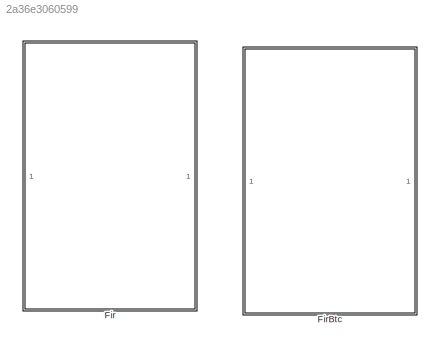
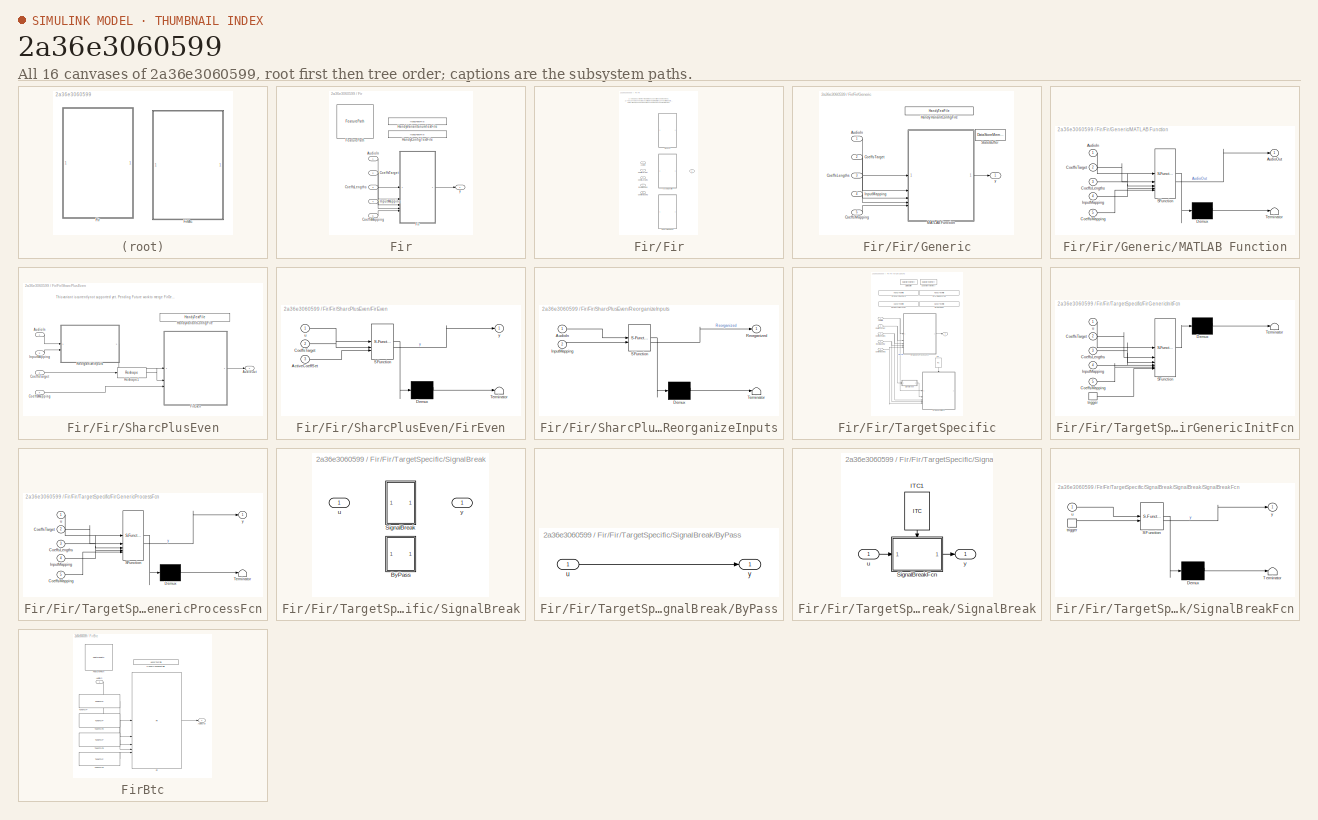
[diagram: thumbnail index - all 16 canvases of the model, root first then tree order]
MODEL slx_2a36e3060599
KIND library
CONFIG AbsTol = auto
CONFIG EnableMultiTasking = off
CONFIG FixedStep = auto
CONFIG MaxStep = auto
CONFIG MinStep = auto
CONFIG RelTol = 1e-3
CONFIG SampleTimeConstraint = Unconstrained
CONFIG SolverName = VariableStepAuto
CONFIG StartTime = 0.0
CONFIG StopTime = 10.0
BLOCK [SubSystem] Fir
BLOCK [Inport] Fir/AudioIn
BLOCK [Inport] Fir/CoeffsLengths
  Port = 3
BLOCK [Inport] Fir/CoeffsMapping
  Port = 5
BLOCK [Inport] Fir/CoeffsTarget
  Port = 2
BLOCK [Reference] Fir/FeaturePath  REF=FeaturePath/FeaturePath
  SourceBlock = FeaturePath/FeaturePath
  SourceProductName = Bose Talaria
  SourceType = Talaria Feature Path
BLOCK [SubSystem] Fir/Fir
  Variant = on
BLOCK [Inport] Fir/Fir/AudioIn
BLOCK [Inport] Fir/Fir/CoeffsLengths
  Port = 3
BLOCK [Inport] Fir/Fir/CoeffsMapping
  Port = 5
BLOCK [Inport] Fir/Fir/CoeffsTarget
  Port = 2
BLOCK [SubSystem] Fir/Fir/Generic
  VariantControl = (default)
BLOCK [Inport] Fir/Fir/Generic/AudioIn
BLOCK [Inport] Fir/Fir/Generic/CoeffsLengths
  Port = 3
BLOCK [Inport] Fir/Fir/Generic/CoeffsMapping
  Port = 5
BLOCK [Inport] Fir/Fir/Generic/CoeffsTarget
  Port = 2
BLOCK [Reference] Fir/Fir/Generic/HandyVariantConfigFile  REF=HandyTextFile/HandyTextFile
  SourceBlock = HandyTextFile/HandyTextFile
  SourceProductName = Bose Talaria
  SourceType = Talaria Handy Text File
BLOCK [Inport] Fir/Fir/Generic/InputMapping
  Port = 4
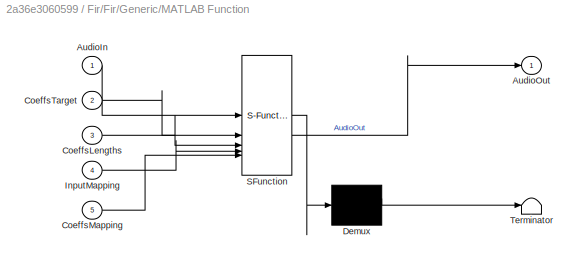
BLOCK [SubSystem] Fir/Fir/Generic/MATLAB Function
  ErrorFcn = Stateflow.Translate.translate
  LibrarySourceBlock = simulink/User-Defined\nFunctions/MATLAB Function
  PermitHierarchicalResolution = ExplicitOnly
  SFBlockType = MATLAB Function
  TreatAsAtomicUnit = on
BLOCK [Demux] Fir/Fir/Generic/MATLAB Function/ Demux 
  Outputs = 1
BLOCK [S-Function] Fir/Fir/Generic/MATLAB Function/ SFunction 
  EnableBusSupport = off
  FunctionName = sf_sfun
  Parameters = FrameSize,NumOutputs
  PortCounts = [5 2]
  SFcnIsStateOwnerBlock = off
  SFunctionDeploymentMode = off
  Tag = Stateflow S-Function 5
BLOCK [Terminator] Fir/Fir/Generic/MATLAB Function/ Terminator 
BLOCK [Inport] Fir/Fir/Generic/MATLAB Function/AudioIn
BLOCK [Outport] Fir/Fir/Generic/MATLAB Function/AudioOut
BLOCK [Inport] Fir/Fir/Generic/MATLAB Function/CoeffsLengths
  Port = 3
BLOCK [Inport] Fir/Fir/Generic/MATLAB Function/CoeffsMapping
  Port = 5
BLOCK [Inport] Fir/Fir/Generic/MATLAB Function/CoeffsTarget
  Port = 2
BLOCK [Inport] Fir/Fir/Generic/MATLAB Function/InputMapping
  Port = 4
BLOCK [DataStoreMemory] Fir/Fir/Generic/StateBuffer
  DataStoreName = StateBuffer
  InitialValue = single(zeros(Config.VariantObj.StateBufferSize,1))
  OutDataTypeStr = single
  ShowAdditionalParam = off
  SignalType = real
  WriteAfterWriteMsg = warning
BLOCK [Outport] Fir/Fir/Generic/y
BLOCK [Inport] Fir/Fir/InputMapping
  Port = 4
BLOCK [SubSystem] Fir/Fir/SharcPlusEven
  VariantControl = (false)
BLOCK [Inport] Fir/Fir/SharcPlusEven/AudioIn
BLOCK [Outport] Fir/Fir/SharcPlusEven/AudioOut
BLOCK [Inport] Fir/Fir/SharcPlusEven/CoeffsMapping
  Port = 4
BLOCK [Inport] Fir/Fir/SharcPlusEven/CoeffsTarget
  Port = 2
BLOCK [SubSystem] Fir/Fir/SharcPlusEven/FirEven
  ErrorFcn = Stateflow.Translate.translate
  LibrarySourceBlock = simulink/User-Defined\nFunctions/MATLAB Function
  PermitHierarchicalResolution = ExplicitOnly
  SFBlockType = MATLAB Function
  TreatAsAtomicUnit = on
BLOCK [Demux] Fir/Fir/SharcPlusEven/FirEven/ Demux 
  Outputs = 1
BLOCK [S-Function] Fir/Fir/SharcPlusEven/FirEven/ SFunction 
  EnableBusSupport = off
  FunctionName = sf_sfun
  PortCounts = [3 2]
  SFcnIsStateOwnerBlock = off
  SFunctionDeploymentMode = off
  Tag = Stateflow S-Function 6
BLOCK [Terminator] Fir/Fir/SharcPlusEven/FirEven/ Terminator 
BLOCK [Inport] Fir/Fir/SharcPlusEven/FirEven/ActiveCoeffSet
  Port = 3
BLOCK [Inport] Fir/Fir/SharcPlusEven/FirEven/CoeffsTarget
  Port = 2
BLOCK [Inport] Fir/Fir/SharcPlusEven/FirEven/u
BLOCK [Outport] Fir/Fir/SharcPlusEven/FirEven/y
BLOCK [Reference] Fir/Fir/SharcPlusEven/HandyVariantConfigFile  REF=HandyTextFile/HandyTextFile
  SourceBlock = HandyTextFile/HandyTextFile
  SourceProductName = Bose Talaria
  SourceType = Talaria Handy Text File
BLOCK [Inport] Fir/Fir/SharcPlusEven/InputMapping
  Port = 3
BLOCK [SubSystem] Fir/Fir/SharcPlusEven/ReorganizeInputs
  ErrorFcn = Stateflow.Translate.translate
  LibrarySourceBlock = simulink/User-Defined\nFunctions/MATLAB Function
  PermitHierarchicalResolution = ExplicitOnly
  SFBlockType = MATLAB Function
  TreatAsAtomicUnit = on
BLOCK [Demux] Fir/Fir/SharcPlusEven/ReorganizeInputs/ Demux 
  Outputs = 1
BLOCK [S-Function] Fir/Fir/SharcPlusEven/ReorganizeInputs/ SFunction 
  EnableBusSupport = off
  FunctionName = sf_sfun
  PortCounts = [2 2]
  SFcnIsStateOwnerBlock = off
  SFunctionDeploymentMode = off
  Tag = Stateflow S-Function 8
BLOCK [Terminator] Fir/Fir/SharcPlusEven/ReorganizeInputs/ Terminator 
BLOCK [Inport] Fir/Fir/SharcPlusEven/ReorganizeInputs/AudioIn
BLOCK [Inport] Fir/Fir/SharcPlusEven/ReorganizeInputs/InputMapping
  Port = 2
BLOCK [Outport] Fir/Fir/SharcPlusEven/ReorganizeInputs/Reorganized
BLOCK [Reshape] Fir/Fir/SharcPlusEven/Reshape1
  OutputDimensionality = Customize
  OutputDimensions = [Config.MaxCoeffLength, Config.NumInputs]
BLOCK [SubSystem] Fir/Fir/TargetSpecific
  VariantControl = (Config.Variant.StartsWith("Sharc")) || (Config.Variant == "Hexagon") || (Config.Variant == "ArmNeonV7V8")
BLOCK [Inport] Fir/Fir/TargetSpecific/AudioIn
BLOCK [DataStoreMemory] Fir/Fir/TargetSpecific/CodeWorkMemory
  DataStoreName = CodeWorkMemory
  InitialValue = uint32(zeros(1,Config.VariantObj.CodeWorkMemorySize))
  OutDataTypeStr = uint32
  ShowAdditionalParam = off
  SignalType = real
  WriteAfterWriteMsg = warning
BLOCK [Inport] Fir/Fir/TargetSpecific/CoeffsLengths
  Port = 3
BLOCK [Inport] Fir/Fir/TargetSpecific/CoeffsMapping
  Port = 5
BLOCK [Inport] Fir/Fir/TargetSpecific/CoeffsTarget
  Port = 2
BLOCK [Reference] Fir/Fir/TargetSpecific/FirArmNeonV7V8  REF=HandyTextFile/HandyTextFile
  SourceBlock = HandyTextFile/HandyTextFile
  SourceProductName = Bose Talaria
  SourceType = Talaria Handy Text File
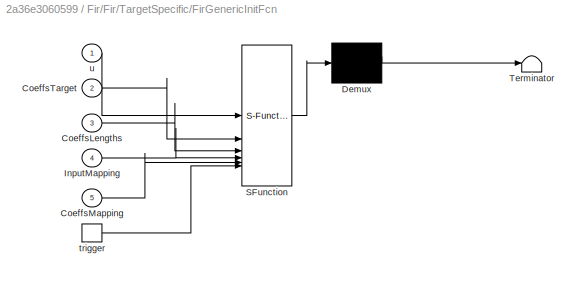
BLOCK [SubSystem] Fir/Fir/TargetSpecific/FirGenericInitFcn
  ErrorFcn = Stateflow.Translate.translate
  LibrarySourceBlock = simulink/User-Defined\nFunctions/MATLAB Function
  PermitHierarchicalResolution = ExplicitOnly
  SFBlockType = MATLAB Function
  TreatAsAtomicUnit = on
BLOCK [Demux] Fir/Fir/TargetSpecific/FirGenericInitFcn/ Demux 
  Outputs = 1
BLOCK [S-Function] Fir/Fir/TargetSpecific/FirGenericInitFcn/ SFunction 
  EnableBusSupport = off
  FunctionName = sf_sfun
  Parameters = VariantUint8
  PortCounts = [6 1]
  SFcnIsStateOwnerBlock = off
  SFunctionDeploymentMode = off
  Tag = Stateflow S-Function 10
BLOCK [Terminator] Fir/Fir/TargetSpecific/FirGenericInitFcn/ Terminator 
BLOCK [Inport] Fir/Fir/TargetSpecific/FirGenericInitFcn/CoeffsLengths
  Port = 3
BLOCK [Inport] Fir/Fir/TargetSpecific/FirGenericInitFcn/CoeffsMapping
  Port = 5
BLOCK [Inport] Fir/Fir/TargetSpecific/FirGenericInitFcn/CoeffsTarget
  Port = 2
BLOCK [Inport] Fir/Fir/TargetSpecific/FirGenericInitFcn/InputMapping
  Port = 4
BLOCK [TriggerPort] Fir/Fir/TargetSpecific/FirGenericInitFcn/trigger
  ShowOutputPort = on
  StatesWhenEnabling = held
  TriggerType = function-call
  VariantControl = (inherit)
BLOCK [Inport] Fir/Fir/TargetSpecific/FirGenericInitFcn/u
BLOCK [SubSystem] Fir/Fir/TargetSpecific/FirGenericProcessFcn
  ErrorFcn = Stateflow.Translate.translate
  LibrarySourceBlock = simulink/User-Defined\nFunctions/MATLAB Function
  PermitHierarchicalResolution = ExplicitOnly
  SFBlockType = MATLAB Function
  TreatAsAtomicUnit = on
BLOCK [Demux] Fir/Fir/TargetSpecific/FirGenericProcessFcn/ Demux 
  Outputs = 1
BLOCK [S-Function] Fir/Fir/TargetSpecific/FirGenericProcessFcn/ SFunction 
  EnableBusSupport = off
  FunctionName = sf_sfun
  Parameters = StateBufferSizeSimulation,VariantUint8
  PortCounts = [5 2]
  SFcnIsStateOwnerBlock = off
  SFunctionDeploymentMode = off
  Tag = Stateflow S-Function 11
BLOCK [Terminator] Fir/Fir/TargetSpecific/FirGenericProcessFcn/ Terminator 
BLOCK [Inport] Fir/Fir/TargetSpecific/FirGenericProcessFcn/CoeffsLengths
  Port = 3
BLOCK [Inport] Fir/Fir/TargetSpecific/FirGenericProcessFcn/CoeffsMapping
  Port = 5
BLOCK [Inport] Fir/Fir/TargetSpecific/FirGenericProcessFcn/CoeffsTarget
  Port = 2
BLOCK [Inport] Fir/Fir/TargetSpecific/FirGenericProcessFcn/InputMapping
  Port = 4
BLOCK [Inport] Fir/Fir/TargetSpecific/FirGenericProcessFcn/u
BLOCK [Outport] Fir/Fir/TargetSpecific/FirGenericProcessFcn/y
BLOCK [Reference] Fir/Fir/TargetSpecific/FirHexagon  REF=HandyTextFile/HandyTextFile
  SourceBlock = HandyTextFile/HandyTextFile
  SourceProductName = Bose Talaria
  SourceType = Talaria Handy Text File
BLOCK [Reference] Fir/Fir/TargetSpecific/FirSharcPlusAccel  REF=HandyTextFile/HandyTextFile
  SourceBlock = HandyTextFile/HandyTextFile
  SourceProductName = Bose Talaria
  SourceType = Talaria Handy Text File
BLOCK [Reference] Fir/Fir/TargetSpecific/FirSharcPlusCore  REF=HandyTextFile/HandyTextFile
  SourceBlock = HandyTextFile/HandyTextFile
  SourceProductName = Bose Talaria
  SourceType = Talaria Handy Text File
BLOCK [Reference] Fir/Fir/TargetSpecific/ITC  REF=ITC/ITC
  NameLocation = right
  SourceBlock = ITC/ITC
  SourceProductName = Bose Talaria
  SourceType = Talaria Initialization Trigger Control
BLOCK [Inport] Fir/Fir/TargetSpecific/InputMapping
  Port = 4
BLOCK [SubSystem] Fir/Fir/TargetSpecific/SignalBreak
  Variant = on
  VariantControl = Choice
BLOCK [SubSystem] Fir/Fir/TargetSpecific/SignalBreak/ByPass
  VariantControl = (default)
BLOCK [Inport] Fir/Fir/TargetSpecific/SignalBreak/ByPass/u
BLOCK [Outport] Fir/Fir/TargetSpecific/SignalBreak/ByPass/y
BLOCK [SubSystem] Fir/Fir/TargetSpecific/SignalBreak/SignalBreak
  VariantControl = Config.Variant == FirVariantEnum.Hexagon
BLOCK [Reference] Fir/Fir/TargetSpecific/SignalBreak/SignalBreak/ITC1  REF=ITC/ITC
  NameLocation = right
  SourceBlock = ITC/ITC
  SourceProductName = Bose Talaria
  SourceType = Talaria Initialization Trigger Control
BLOCK [SubSystem] Fir/Fir/TargetSpecific/SignalBreak/SignalBreak/SignalBreakFcn
  ErrorFcn = Stateflow.Translate.translate
  LibrarySourceBlock = simulink/User-Defined\nFunctions/MATLAB Function
  PermitHierarchicalResolution = ExplicitOnly
  SFBlockType = MATLAB Function
  TreatAsAtomicUnit = on
BLOCK [Demux] Fir/Fir/TargetSpecific/SignalBreak/SignalBreak/SignalBreakFcn/ Demux 
  Outputs = 1
BLOCK [S-Function] Fir/Fir/TargetSpecific/SignalBreak/SignalBreak/SignalBreakFcn/ SFunction 
  EnableBusSupport = off
  FunctionName = sf_sfun
  PortCounts = [2 2]
  SFcnIsStateOwnerBlock = off
  SFunctionDeploymentMode = off
  Tag = Stateflow S-Function 12
BLOCK [Terminator] Fir/Fir/TargetSpecific/SignalBreak/SignalBreak/SignalBreakFcn/ Terminator 
BLOCK [TriggerPort] Fir/Fir/TargetSpecific/SignalBreak/SignalBreak/SignalBreakFcn/trigger
  ShowOutputPort = on
  StatesWhenEnabling = held
  TriggerType = function-call
  VariantControl = (inherit)
BLOCK [Inport] Fir/Fir/TargetSpecific/SignalBreak/SignalBreak/SignalBreakFcn/u
BLOCK [Outport] Fir/Fir/TargetSpecific/SignalBreak/SignalBreak/SignalBreakFcn/y
BLOCK [Inport] Fir/Fir/TargetSpecific/SignalBreak/SignalBreak/u
BLOCK [Outport] Fir/Fir/TargetSpecific/SignalBreak/SignalBreak/y
BLOCK [Inport] Fir/Fir/TargetSpecific/SignalBreak/u
BLOCK [Outport] Fir/Fir/TargetSpecific/SignalBreak/y
BLOCK [DataStoreMemory] Fir/Fir/TargetSpecific/StateBuffer
  DataStoreName = StateBuffer
  InitialValue = single(zeros(Config.VariantObj.StateBufferSize,1))
  OutDataTypeStr = single
  ShowAdditionalParam = off
  SignalType = real
  WriteAfterWriteMsg = warning
BLOCK [Outport] Fir/Fir/TargetSpecific/y
BLOCK [Outport] Fir/Fir/y
BLOCK [Reference] Fir/HandyConfigTextFile  REF=HandyTextFile/HandyTextFile
  SourceBlock = HandyTextFile/HandyTextFile
  SourceProductName = Bose Talaria
  SourceType = Talaria Handy Text File
BLOCK [Reference] Fir/HandyVariantEnumTextFile  REF=HandyTextFile/HandyTextFile
  SourceBlock = HandyTextFile/HandyTextFile
  SourceProductName = Bose Talaria
  SourceType = Talaria Handy Text File
BLOCK [Inport] Fir/InputMapping
  Port = 4
BLOCK [Outport] Fir/y
BLOCK [SubSystem] FirBtc
BLOCK [Inport] FirBtc/AudioIn
BLOCK [Outport] FirBtc/AudioOut
BLOCK [Reference] FirBtc/FeaturePath  REF=FeaturePath/FeaturePath
  SourceBlock = FeaturePath/FeaturePath
  SourceProductName = Bose Talaria
  SourceType = Talaria Feature Path
BLOCK [Reference] FirBtc/Fir  REF=$bdroot/Fir
  SourceBlock = $bdroot/Fir
  SourceType = Blocklib Fir
BLOCK [Reference] FirBtc/HandyConfigTextFile  REF=HandyTextFile/HandyTextFile
  SourceBlock = HandyTextFile/HandyTextFile
  SourceProductName = Bose Talaria
  SourceType = Talaria Handy Text File
BLOCK [Reference] FirBtc/TuneTOP  REF=TuneVar/TuneTOP
  SourceBlock = TuneVar/TuneTOP
  SourceProductName = Bose Talaria
  SourceType = Talaria Trivial Tune TOP
BLOCK [Reference] FirBtc/TuneTOP2  REF=TuneVar/TuneTOP
  SourceBlock = TuneVar/TuneTOP
  SourceProductName = Bose Talaria
  SourceType = Talaria Trivial Tune TOP
BLOCK [Reference] FirBtc/TuneTOP3  REF=TuneVar/TuneTOP
  SourceBlock = TuneVar/TuneTOP
  SourceProductName = Bose Talaria
  SourceType = Talaria Trivial Tune TOP
BLOCK [Reference] FirBtc/TuneTOP4  REF=TuneVar/TuneTOP
  SourceBlock = TuneVar/TuneTOP
  SourceProductName = Bose Talaria
  SourceType = Talaria Trivial Tune TOP
ANNOTATION Fir/Fir: 1) Add Subsystem or Model blocks as valid variant choices. 2) You cannot connect blocks at this level. At simulation, connectivity is automatically determined, based on the active variant and port name matching.
ANNOTATION Fir/Fir/SharcPlusEven: This variant is currently not supported yet. Pending Future work to merge FirGeneric and FirEven block.
LINE Fir/AudioIn:1 -> Fir/Fir:1
LINE Fir/CoeffsLengths:1 -> Fir/Fir:3
LINE Fir/CoeffsMapping:1 -> Fir/Fir:5
LINE Fir/CoeffsTarget:1 -> Fir/Fir:2
LINE Fir/Fir/Generic/AudioIn:1 -> Fir/Fir/Generic/MATLAB Function:1
LINE Fir/Fir/Generic/CoeffsLengths:1 -> Fir/Fir/Generic/MATLAB Function:3
LINE Fir/Fir/Generic/CoeffsMapping:1 -> Fir/Fir/Generic/MATLAB Function:5
LINE Fir/Fir/Generic/CoeffsTarget:1 -> Fir/Fir/Generic/MATLAB Function:2
LINE Fir/Fir/Generic/InputMapping:1 -> Fir/Fir/Generic/MATLAB Function:4
LINE Fir/Fir/Generic/MATLAB Function:1 -> Fir/Fir/Generic/y:1
LINE Fir/Fir/SharcPlusEven/AudioIn:1 -> Fir/Fir/SharcPlusEven/ReorganizeInputs:1
LINE Fir/Fir/SharcPlusEven/CoeffsMapping:1 -> Fir/Fir/SharcPlusEven/FirEven:3
LINE Fir/Fir/SharcPlusEven/CoeffsTarget:1 -> Fir/Fir/SharcPlusEven/Reshape1:1
LINE Fir/Fir/SharcPlusEven/FirEven:1 -> Fir/Fir/SharcPlusEven/AudioOut:1
LINE Fir/Fir/SharcPlusEven/InputMapping:1 -> Fir/Fir/SharcPlusEven/ReorganizeInputs:2
LINE Fir/Fir/SharcPlusEven/ReorganizeInputs:1 -> Fir/Fir/SharcPlusEven/FirEven:1
LINE Fir/Fir/SharcPlusEven/Reshape1:1 -> Fir/Fir/SharcPlusEven/FirEven:2
NET Fir/Fir/TargetSpecific/AudioIn:1 -> Fir/Fir/TargetSpecific/FirGenericInitFcn:1, Fir/Fir/TargetSpecific/FirGenericProcessFcn:1
NET Fir/Fir/TargetSpecific/CoeffsLengths:1 -> Fir/Fir/TargetSpecific/FirGenericInitFcn:3, Fir/Fir/TargetSpecific/FirGenericProcessFcn:3
NET Fir/Fir/TargetSpecific/CoeffsMapping:1 -> Fir/Fir/TargetSpecific/FirGenericInitFcn:5, Fir/Fir/TargetSpecific/FirGenericProcessFcn:5
NET Fir/Fir/TargetSpecific/CoeffsTarget:1 -> Fir/Fir/TargetSpecific/FirGenericProcessFcn:2, Fir/Fir/TargetSpecific/SignalBreak:1
LINE Fir/Fir/TargetSpecific/FirGenericProcessFcn:1 -> Fir/Fir/TargetSpecific/y:1
LINE Fir/Fir/TargetSpecific/ITC:1 -> Fir/Fir/TargetSpecific/FirGenericInitFcn:trigger
NET Fir/Fir/TargetSpecific/InputMapping:1 -> Fir/Fir/TargetSpecific/FirGenericInitFcn:4, Fir/Fir/TargetSpecific/FirGenericProcessFcn:4
LINE Fir/Fir/TargetSpecific/SignalBreak/ByPass/u:1 -> Fir/Fir/TargetSpecific/SignalBreak/ByPass/y:1
LINE Fir/Fir/TargetSpecific/SignalBreak/SignalBreak/ITC1:1 -> Fir/Fir/TargetSpecific/SignalBreak/SignalBreak/SignalBreakFcn:trigger
LINE Fir/Fir/TargetSpecific/SignalBreak/SignalBreak/SignalBreakFcn:1 -> Fir/Fir/TargetSpecific/SignalBreak/SignalBreak/y:1
LINE Fir/Fir/TargetSpecific/SignalBreak/SignalBreak/u:1 -> Fir/Fir/TargetSpecific/SignalBreak/SignalBreak/SignalBreakFcn:1
LINE Fir/Fir/TargetSpecific/SignalBreak:1 -> Fir/Fir/TargetSpecific/FirGenericInitFcn:2
LINE Fir/Fir:1 -> Fir/y:1
LINE Fir/InputMapping:1 -> Fir/Fir:4
LINE FirBtc/AudioIn:1 -> FirBtc/Fir:1
LINE FirBtc/Fir:1 -> FirBtc/AudioOut:1
LINE FirBtc/TuneTOP2:1 -> FirBtc/Fir:3
LINE FirBtc/TuneTOP3:1 -> FirBtc/Fir:4
LINE FirBtc/TuneTOP4:1 -> FirBtc/Fir:5
LINE FirBtc/TuneTOP:1 -> FirBtc/Fir:2
note: NET lines group one-source signal fan-out (src -> all destinations, sorted); 1:1 wires keep LINE
CHART Fir/Fir/Generic/MATLAB Function states=1 transitions=1
  STATE_LABEL 'eML_blk_kernel()'
  STATE_LABEL 'SCRIPT:\nfunction AudioOut = FirGenericProcess(AudioIn, CoeffsTarget, CoeffsLengths, InputMapping, CoeffsMapping, FrameSize, NumOutputs)\nglobal StateBuffer;\n\nNumOutputs = numel(CoeffsMapping);\nAudioOut = FirGenericProcessSim(AudioIn, CoeffsTarget, numel(StateBuffer), CoeffsLengths, ...\n                InputMapping, CoeffsMapping, FrameSize, NumOutputs);\nend\n\n'
CHART Fir/Fir/SharcPlusEven/FirEven states=1 transitions=1
  STATE_LABEL 'eML_blk_kernel()'
  STATE_LABEL 'SCRIPT:\nfunction y = FirSharcPlusEvenProcess(u, CoeffsTarget, ActiveCoeffSet)\n\n% Extract configuration information from inputs\n[FilterLength, ~] = size(CoeffsTarget);\n[FrameSize, NumChannels] = size(u);\n\n% Initialize variables\npersistent States;\nif isempty(States)\n    States = single(zeros(FilterLength + FrameSize + 2, NumChannels));\nend\n\n% Initialize state index to zero\npersistent StateIndex;\nif ...<+682ch>'
CHART Fir/Fir/SharcPlusEven/ReorganizeInputs states=1 transitions=1
  STATE_LABEL 'eML_blk_kernel()'
  STATE_LABEL 'SCRIPT:\nfunction Reorganized = ReOrganizeInputs(AudioIn, InputMapping)\n% Reorganize inputs such that Input(i) Maps to Output(i)\n% Add 1 for matlab indexing\nReorganized = AudioIn(:,InputMapping + 1);\n'
CHART Fir/Fir/TargetSpecific/FirGenericInitFcn states=1 transitions=1
  STATE_LABEL 'eML_blk_kernel()'
  STATE_LABEL 'SCRIPT:\n  function FirGenericInit(u, CoeffsTarget, CoeffsLengths, InputMapping, CoeffsMapping, VariantUint8)\n% Generic FIR function to work with M inputs, N outputs and K filters\n%\n% Parameters:\n%   u:              input channels [frame size x number of inputs]\n%   CoeffsTarget:    coefficient sets [total filter lengths x 1]\n%   CoeffsLengths:  array of filter lengths [number of filters x 1]\n%   I...<+3608ch>'
CHART Fir/Fir/TargetSpecific/FirGenericProcessFcn states=1 transitions=1
  STATE_LABEL 'eML_blk_kernel()'
  STATE_LABEL 'SCRIPT:\nfunction y = FirGenericProcess(u, CoeffsTarget, CoeffsLengths, InputMapping, CoeffsMapping, VariantUint8, StateBufferSizeSimulation)\n% Generic FIR function to work with M inputs, N outputs and K filters\n%\n% Parameters:\n%   u:              input channels [frame size x number of inputs]\n%   CoeffsTarget:   coefficient sets, translated to target specfic format [total filter lengths x 1]\n%   C...<+3420ch>'
CHART Fir/Fir/TargetSpecific/SignalBreak/SignalBreak/SignalBreakFcn states=1 transitions=1
  STATE_LABEL 'eML_blk_kernel()'
  STATE_LABEL 'SCRIPT:\nfunction y = fcn(u)\n\ny = u;\n'
CHART  states=0 transitions=0
CHART  states=0 transitions=0
CHART  states=0 transitions=0
CHART  states=0 transitions=0
CHART  states=0 transitions=0
CHART  states=0 transitions=0
